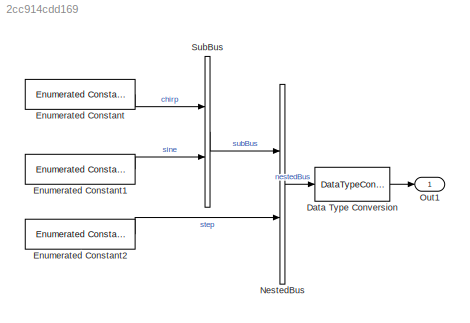
MODEL slx_2cc914cdd169
KIND model
CONFIG AbsTol = auto
CONFIG EnableMultiTasking = off
CONFIG FixedStep = 0.200000
CONFIG MaxStep = auto
CONFIG MinStep = auto
CONFIG PreLoadFcn = % Bus object: subBus \nclear elems;\nelems(1) = Simulink.BusElement;\nelems(1).Name = 'chirp';\nelems(1).Dimensions = 1;\nelems(1).DimensionsMode = 'Fixed';\nelems(1).DataType = 'Enum: Days';\nelems(1).SampleTime = -1;\nelems(1).Complexity = 'real';\nelems(1).Min = [];\nelems(1).Max = [];\nelems(1).DocUnits = '';\nelems(1).Description = '';\n\nelems(2) = Simulink.BusElement;\nelems(2).Name = 'sine';\nelems(2).Dim...<+1244ch>
CONFIG RelTol = 1e-3
CONFIG SampleTimeConstraint = Unconstrained
CONFIG Solver = FixedStepDiscrete
CONFIG SolverName = FixedStepDiscrete
CONFIG StartTime = 0.0
CONFIG StopTime = 10.0
BLOCK [DataTypeConversion] Data Type Conversion
  OutDataTypeStr = int8
  RndMeth = Floor
  SaturateOnIntegerOverflow = off
BLOCK [Reference] Enumerated Constant  REF=simulink/Sources/Enumerated
Constant
  Ports = [0, 1]
  SourceBlock = simulink/Sources/Enumerated\nConstant
  SourceProductBaseCode = SL
  SourceProductName = Simulink
  SourceType = Enumerated Constant
BLOCK [Reference] Enumerated Constant1  REF=simulink/Sources/Enumerated
Constant
  Ports = [0, 1]
  SourceBlock = simulink/Sources/Enumerated\nConstant
  SourceProductBaseCode = SL
  SourceProductName = Simulink
  SourceType = Enumerated Constant
BLOCK [Reference] Enumerated Constant2  REF=simulink/Sources/Enumerated
Constant
  Ports = [0, 1]
  SourceBlock = simulink/Sources/Enumerated\nConstant
  SourceProductBaseCode = SL
  SourceProductName = Simulink
  SourceType = Enumerated Constant
BLOCK [BusCreator] NestedBus
  AttributesFormatString = NestedBus
  DisplayOption = bar
  InheritFromInputs = on
  Inputs = 2
  Ports = [2, 1]
BLOCK [Outport] Out1
  IconDisplay = Port number
BLOCK [BusCreator] SubBus
  AttributesFormatString = SubBus
  DisplayOption = bar
  InheritFromInputs = on
  Inputs = 2
  Ports = [2, 1]
LINE Data Type Conversion:1 -> Out1:1
LINE Enumerated Constant1:1 -> SubBus:2
LINE Enumerated Constant2:1 -> NestedBus:2
LINE Enumerated Constant:1 -> SubBus:1
LINE NestedBus:1 -> Data Type Conversion:1
LINE SubBus:1 -> NestedBus:1
